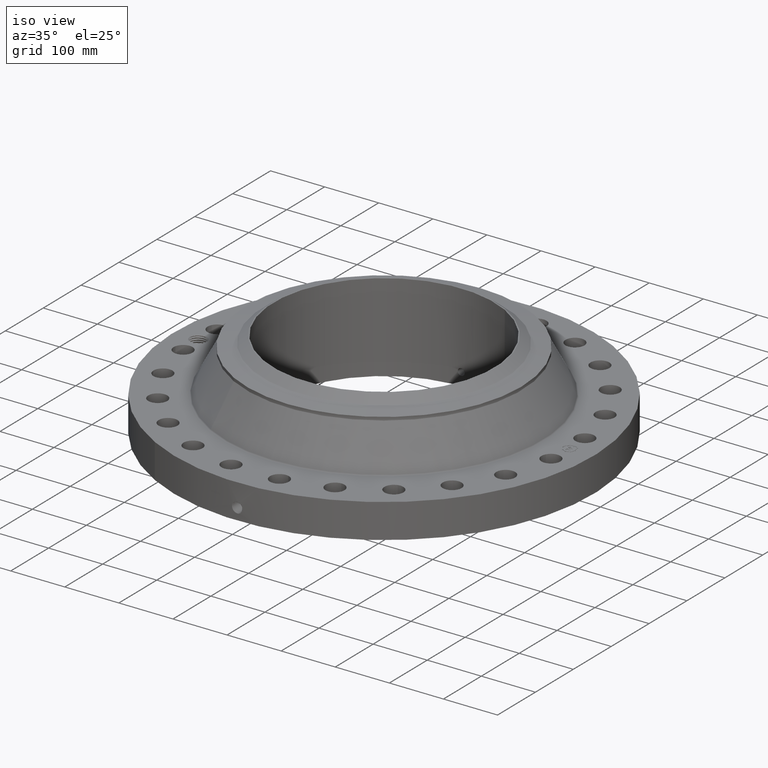
[diagram: clean part render]
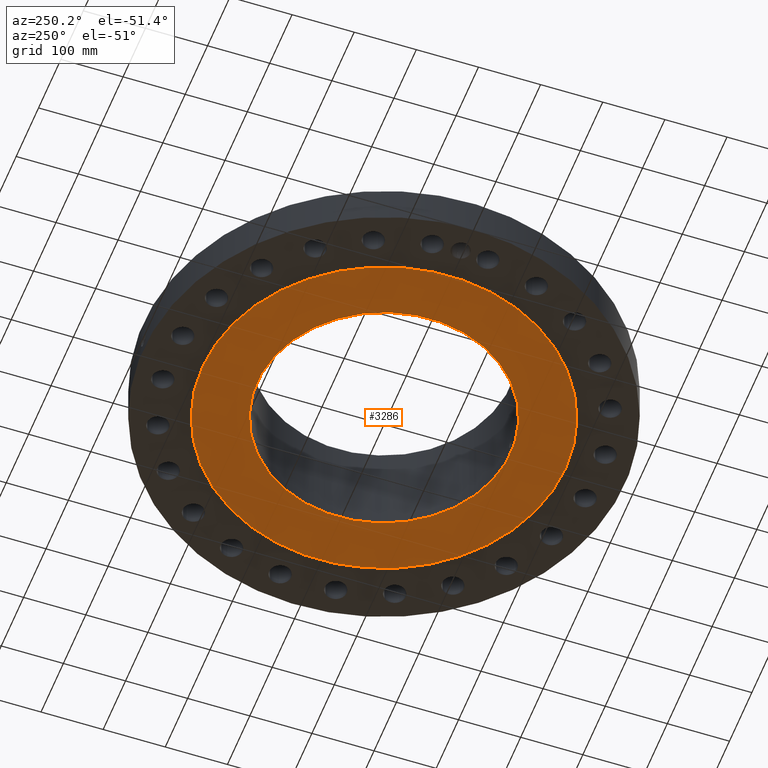
[diagram: tour spotlight — one face highlighted and labeled with its STEP entity id]
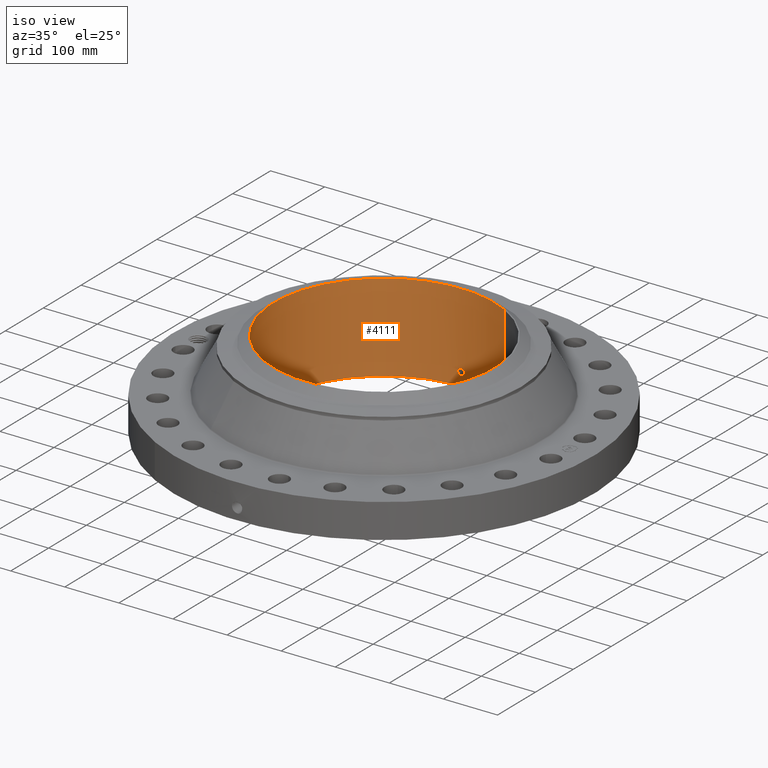
[diagram: tour spotlight — one face highlighted and labeled with its STEP entity id]
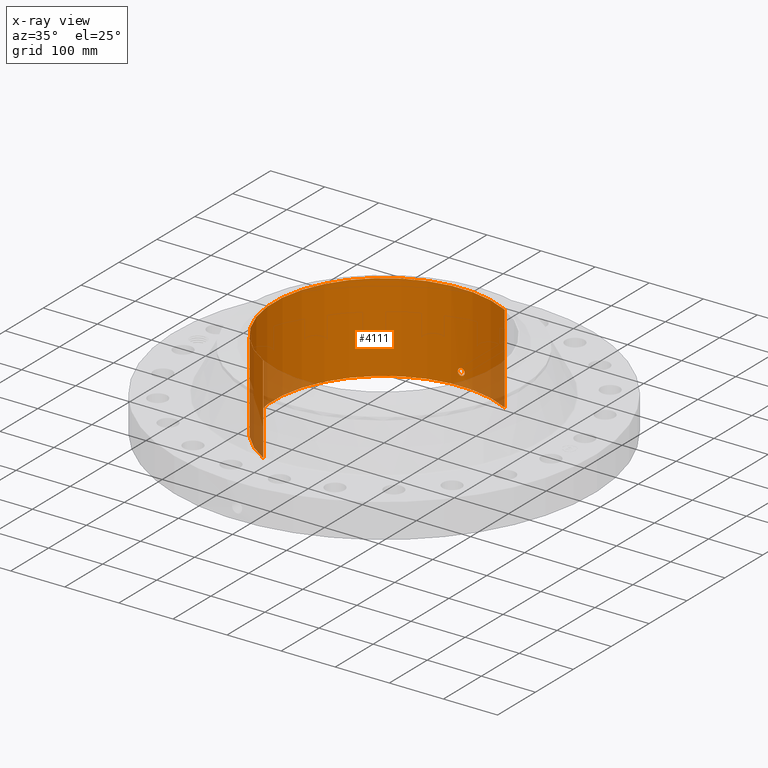
[diagram: x-ray of the same camera — body ghosted, this tour face saturated]
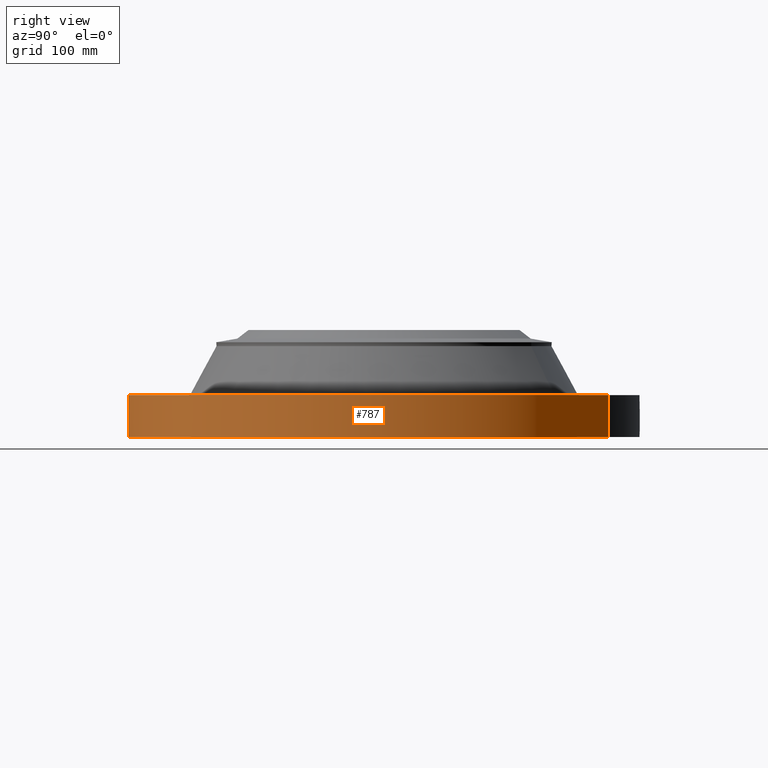
[diagram: tour spotlight — one face highlighted and labeled with its STEP entity id]
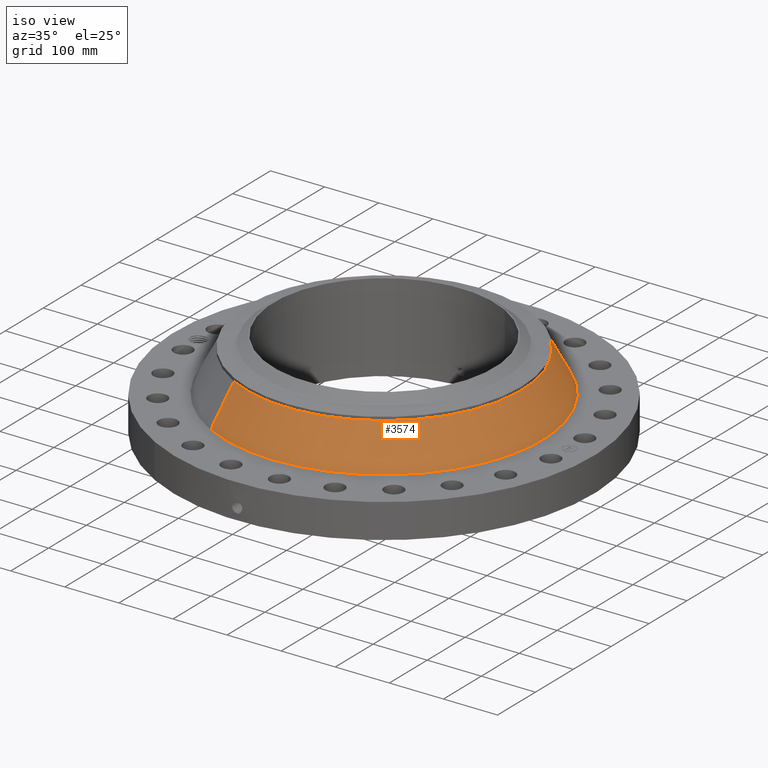
[diagram: tour spotlight — one face highlighted and labeled with its STEP entity id]
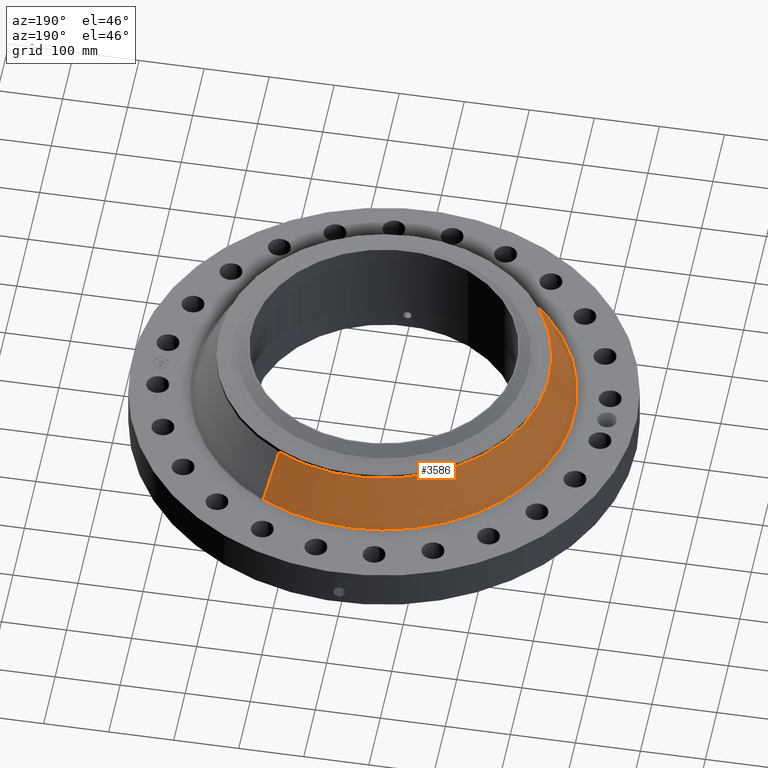
[diagram: tour spotlight — one face highlighted and labeled with its STEP entity id]
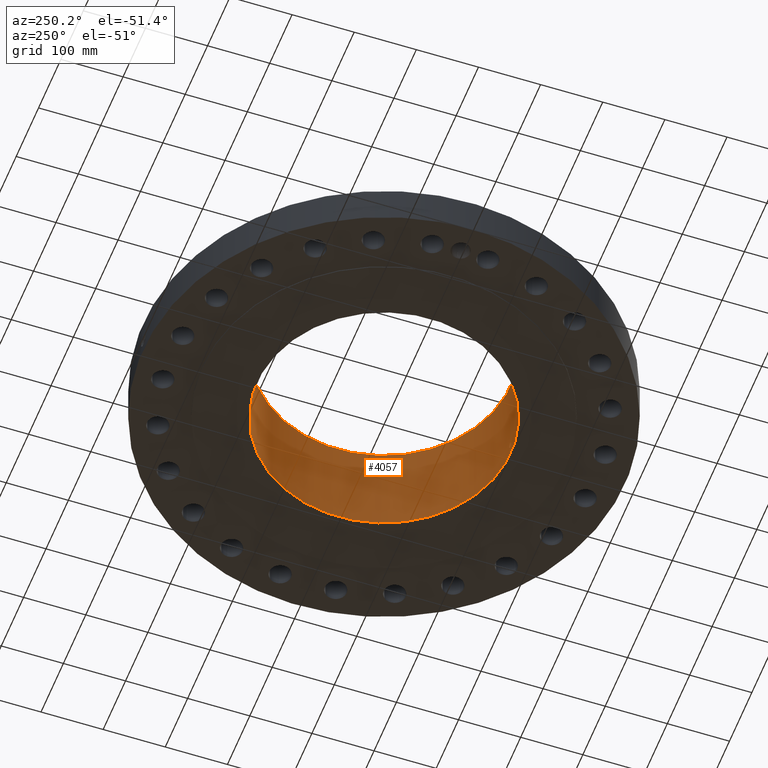
[diagram: tour spotlight — one face highlighted and labeled with its STEP entity id]
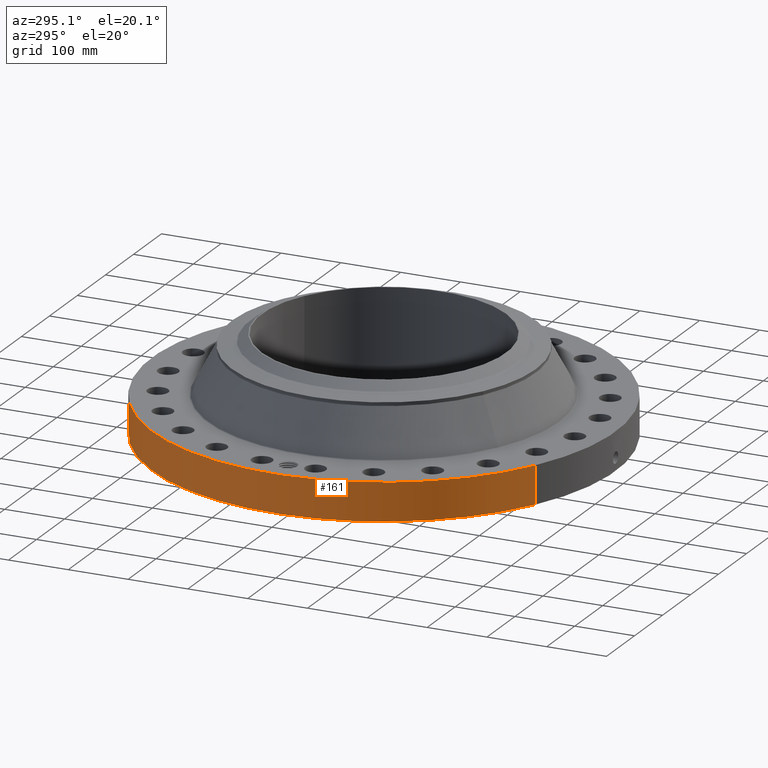
[diagram: tour spotlight — one face highlighted and labeled with its STEP entity id]
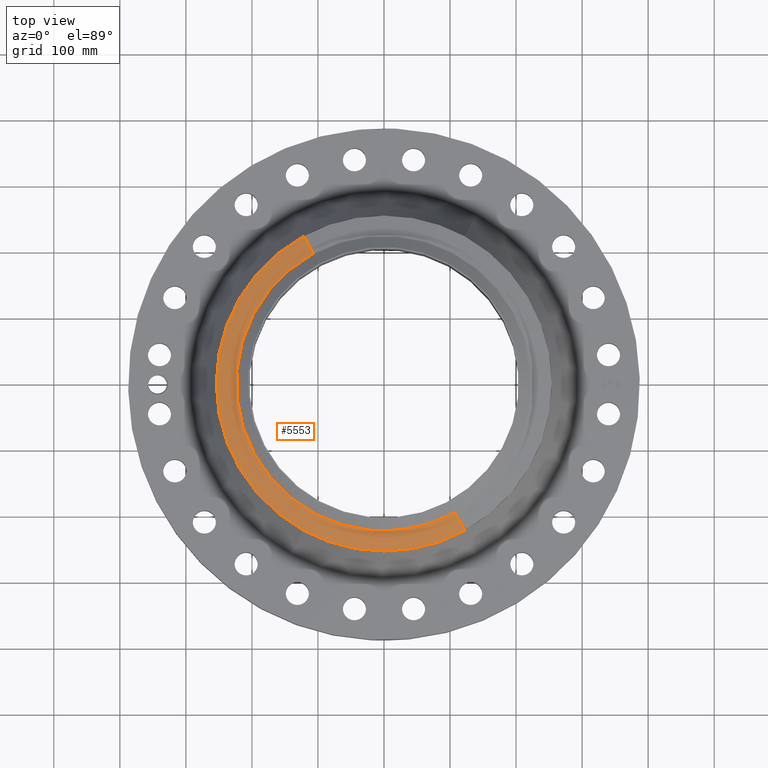
[diagram: tour spotlight — one face highlighted and labeled with its STEP entity id]
A machine part: a face-by-face anatomy tour. The part has 822 B-rep faces; the first image is the clean iso view, then the 8 largest visible faces are spotlighted one at a time (largest first), each with its STEP entity span.

Face 1 — auxiliary view, entity #3286. In plain terms, the highlighted planar face has unit normal (0, 0, -1).
Definition (entity closure, byte-faithful):
#1744=AXIS2_PLACEMENT_3D('Circle Axis2P3D',#1742,#1743,$) ;
#1770=AXIS2_PLACEMENT_3D('Circle Axis2P3D',#1768,#1769,$) ;
#3262=AXIS2_PLACEMENT_3D('Plane Axis2P3D',#3259,#3260,#3261) ;
#3270=AXIS2_PLACEMENT_3D('Circle Axis2P3D',#3268,#3269,$) ;
#3279=AXIS2_PLACEMENT_3D('Circle Axis2P3D',#3277,#3278,$) ;
#1742=CARTESIAN_POINT('Axis2P3D Location',(0.,0.,1.1189649382E-015)) ;
#1746=CARTESIAN_POINT('Vertex',(5.51339369397,10.0921994618,1.1189649382E-015)) ;
#1748=CARTESIAN_POINT('Vertex',(-5.51339369397,-10.0921994618,1.1189649382E-015)) ;
#1768=CARTESIAN_POINT('Axis2P3D Location',(0.,0.,1.1189649382E-015)) ;
#3259=CARTESIAN_POINT('Axis2P3D Location',(0.,8.03100000003,0.)) ;
#3268=CARTESIAN_POINT('Axis2P3D Location',(0.,0.,0.)) ;
#3272=CARTESIAN_POINT('Vertex',(3.85026650055,7.04786555457,-6.82568612305E-014)) ;
#3274=CARTESIAN_POINT('Vertex',(-3.85026650055,-7.04786555457,-6.82568612305E-014)) ;
#3277=CARTESIAN_POINT('Axis2P3D Location',(0.,0.,0.)) ;
#1743=DIRECTION('Axis2P3D Direction',(0.,0.,-0.0393700787402)) ;
#1769=DIRECTION('Axis2P3D Direction',(0.,0.,-0.0393700787402)) ;
#3260=DIRECTION('Axis2P3D Direction',(0.,0.,-0.0393700787402)) ;
#3261=DIRECTION('Axis2P3D XDirection',(0.0393700787402,0.,0.)) ;
#3269=DIRECTION('Axis2P3D Direction',(0.,0.,-0.0393700787402)) ;
#3278=DIRECTION('Axis2P3D Direction',(0.,0.,-0.0393700787402)) ;
#3265=ORIENTED_EDGE('',*,*,#1772,.T.) ;
#3266=ORIENTED_EDGE('',*,*,#1750,.T.) ;
#3283=ORIENTED_EDGE('',*,*,#3276,.F.) ;
#3284=ORIENTED_EDGE('',*,*,#3281,.F.) ;
#3285=FACE_BOUND('',#3282,.T.) ;
#3286=ADVANCED_FACE('PartBody',(#3267,#3285),#3263,.T.) ;
#1745=CIRCLE('generated circle',#1744,11.5) ;
#1771=CIRCLE('generated circle',#1770,11.5) ;
#3271=CIRCLE('generated circle',#3270,8.03100000003) ;
#3280=CIRCLE('generated circle',#3279,8.03100000003) ;
#1750=EDGE_CURVE('',#1747,#1749,#1745,.T.) ;
#1772=EDGE_CURVE('',#1749,#1747,#1771,.T.) ;
#3276=EDGE_CURVE('',#3273,#3275,#3271,.T.) ;
#3281=EDGE_CURVE('',#3275,#3273,#3280,.T.) ;
#3264=EDGE_LOOP('',(#3265,#3266)) ;
#3282=EDGE_LOOP('',(#3283,#3284)) ;
#3267=FACE_OUTER_BOUND('',#3264,.T.) ;
#3263=PLANE('',#3262) ;
#1747=VERTEX_POINT('',#1746) ;
#1749=VERTEX_POINT('',#1748) ;
#3273=VERTEX_POINT('',#3272) ;
#3275=VERTEX_POINT('',#3274) ;

Face 2 — iso view, entity #4111. An x-ray twin of the same camera follows (body ghosted, this face saturated) — the face is partly hidden behind the body. In plain terms, the highlighted cylindrical surface (partial cylindrical patch) has radius 203.987 mm, axis along (0, 0, -1).
Definition (entity closure, byte-faithful):
#3279=AXIS2_PLACEMENT_3D('Circle Axis2P3D',#3277,#3278,$) ;
#3988=AXIS2_PLACEMENT_3D('Cylinder Axis2P3D',#3985,#3986,#3987) ;
#4060=AXIS2_PLACEMENT_3D('Circle Axis2P3D',#4058,#4059,$) ;
#3272=CARTESIAN_POINT('Vertex',(3.85026650055,7.04786555457,-6.82568612305E-014)) ;
#3274=CARTESIAN_POINT('Vertex',(-3.85026650055,-7.04786555457,-6.82568612305E-014)) ;
#3277=CARTESIAN_POINT('Axis2P3D Location',(0.,0.,0.)) ;
#3985=CARTESIAN_POINT('Axis2P3D Location',(0.,0.,3.22000000001)) ;
#3994=CARTESIAN_POINT('Vertex',(3.85026650055,7.04786555457,6.44000000003)) ;
#3996=CARTESIAN_POINT('Vertex',(-3.85026650055,-7.04786555457,6.44000000003)) ;
#3999=CARTESIAN_POINT('Line Origine',(3.85026650055,7.04786555457,3.22000000001)) ;
#4004=CARTESIAN_POINT('Line Origine',(-3.85026650055,-7.04786555457,3.22000000001)) ;
#4058=CARTESIAN_POINT('Axis2P3D Location',(0.,0.,6.44000000003)) ;
#4070=CARTESIAN_POINT('Control Point',(0.219395640473,8.02800265031,1.05985638466)) ;
#4071=CARTESIAN_POINT('Control Point',(0.194443231357,8.02868456959,1.10553146317)) ;
#4072=CARTESIAN_POINT('Control Point',(0.157606155167,8.02959426464,1.14471043189)) ;
#4073=CARTESIAN_POINT('Control Point',(0.111110289617,8.03047894444,1.17324213297)) ;
#4074=CARTESIAN_POINT('Control Point',(0.0336761688088,8.0311828387,1.19588217449)) ;
#4075=CARTESIAN_POINT('Control Point',(-0.0446680706048,8.03093962884,1.18805678429)) ;
#4076=CARTESIAN_POINT('Control Point',(-0.0702969801381,8.03075082117,1.18204470465)) ;
#4077=CARTESIAN_POINT('Control Point',(-0.143952060388,8.02991643995,1.15421459673)) ;
#4078=CARTESIAN_POINT('Control Point',(-0.203238942375,8.02855443048,1.09950342763)) ;
#4079=CARTESIAN_POINT('Control Point',(-0.232205395001,8.02766102467,1.05326675536)) ;
#4080=CARTESIAN_POINT('Control Point',(-0.255839783985,8.02692648241,0.975119048047)) ;
#4081=CARTESIAN_POINT('Control Point',(-0.248284067966,8.02716111598,0.895752013794)) ;
#4082=CARTESIAN_POINT('Control Point',(-0.242050260821,8.02735751363,0.869187462224)) ;
#4083=CARTESIAN_POINT('Control Point',(-0.23231626622,8.02764954518,0.843794662138)) ;
#4084=CARTESIAN_POINT('Control Point',(-0.219395640473,8.02800265031,0.820143615352)) ;
#4085=CARTESIAN_POINT('Vertex',(0.219395640473,8.02800265031,1.05985638466)) ;
#4087=CARTESIAN_POINT('Vertex',(-0.219395640473,8.02800265031,0.820143615352)) ;
#4091=CARTESIAN_POINT('Control Point',(-0.219395640473,8.02800265031,0.820143615352)) ;
#4092=CARTESIAN_POINT('Control Point',(-0.194443231329,8.02868456959,0.774468536787)) ;
#4093=CARTESIAN_POINT('Control Point',(-0.157606155086,8.02959426464,0.735289568036)) ;
#4094=CARTESIAN_POINT('Control Point',(-0.111110289729,8.03047894444,0.706757867074)) ;
#4095=CARTESIAN_POINT('Control Point',(-0.0336761688433,8.0311828387,0.684117825508)) ;
#4096=CARTESIAN_POINT('Control Point',(0.0446680706495,8.03093962884,0.691943215721)) ;
#4097=CARTESIAN_POINT('Control Point',(0.0702969800971,8.03075082117,0.697955295343)) ;
#4098=CARTESIAN_POINT('Control Point',(0.143952060411,8.02991643995,0.725785403279)) ;
#4099=CARTESIAN_POINT('Control Point',(0.203238942439,8.02855443048,0.780496572437)) ;
#4100=CARTESIAN_POINT('Control Point',(0.232205394977,8.02766102467,0.826733244565)) ;
#4101=CARTESIAN_POINT('Control Point',(0.255839783979,8.02692648241,0.904880951886)) ;
#4102=CARTESIAN_POINT('Control Point',(0.248284067973,8.02716111598,0.984247986147)) ;
#4103=CARTESIAN_POINT('Control Point',(0.242050260797,8.02735751363,1.01081253785)) ;
#4104=CARTESIAN_POINT('Control Point',(0.232316266204,8.02764954518,1.0362053379)) ;
#4105=CARTESIAN_POINT('Control Point',(0.219395640473,8.02800265031,1.05985638466)) ;
#3278=DIRECTION('Axis2P3D Direction',(0.,0.,-0.0393700787402)) ;
#3986=DIRECTION('Axis2P3D Direction',(0.,0.,-0.0393700787402)) ;
#3987=DIRECTION('Axis2P3D XDirection',(-0.0188750212049,-0.0345504945626,0.)) ;
#4000=DIRECTION('Vector Direction',(0.,0.,-0.0393700787402)) ;
#4005=DIRECTION('Vector Direction',(0.,0.,-0.0393700787402)) ;
#4059=DIRECTION('Axis2P3D Direction',(0.,0.,-0.0393700787402)) ;
#4001=VECTOR('Line Direction',#4000,0.0393700787402) ;
#4006=VECTOR('Line Direction',#4005,0.0393700787402) ;
#4064=ORIENTED_EDGE('',*,*,#4062,.F.) ;
#4065=ORIENTED_EDGE('',*,*,#4008,.T.) ;
#4066=ORIENTED_EDGE('',*,*,#3281,.T.) ;
#4067=ORIENTED_EDGE('',*,*,#4003,.F.) ;
#4108=ORIENTED_EDGE('',*,*,#4089,.F.) ;
#4109=ORIENTED_EDGE('',*,*,#4106,.F.) ;
#4110=FACE_BOUND('',#4107,.T.) ;
#4111=ADVANCED_FACE('PartBody',(#4068,#4110),#3989,.F.) ;
#4069=B_SPLINE_CURVE_WITH_KNOTS('',5,(#4070,#4071,#4072,#4073,#4074,#4075,#4076,#4077,#4078,#4079,#4080,#4081,#4082,#4083,#4084),.UNSPECIFIED.,.F.,.U.,(6,3,3,3,6),(0.,9.34861575651,14.0227898226,23.3728212018,28.2136349633),.UNSPECIFIED.) ;
#4090=B_SPLINE_CURVE_WITH_KNOTS('',5,(#4091,#4092,#4093,#4094,#4095,#4096,#4097,#4098,#4099,#4100,#4101,#4102,#4103,#4104,#4105),.UNSPECIFIED.,.F.,.U.,(6,3,3,3,6),(0.,9.34861576667,14.0227898367,23.3728212234,28.2136349789),.UNSPECIFIED.) ;
#3280=CIRCLE('generated circle',#3279,8.03100000003) ;
#4061=CIRCLE('generated circle',#4060,8.03100000003) ;
#3989=CYLINDRICAL_SURFACE('generated cylinder',#3988,8.03100000003) ;
#3281=EDGE_CURVE('',#3275,#3273,#3280,.T.) ;
#4003=EDGE_CURVE('',#3995,#3273,#4002,.T.) ;
#4008=EDGE_CURVE('',#3997,#3275,#4007,.T.) ;
#4062=EDGE_CURVE('',#3997,#3995,#4061,.T.) ;
#4089=EDGE_CURVE('',#4086,#4088,#4069,.T.) ;
#4106=EDGE_CURVE('',#4088,#4086,#4090,.T.) ;
#4063=EDGE_LOOP('',(#4064,#4065,#4066,#4067)) ;
#4107=EDGE_LOOP('',(#4108,#4109)) ;
#4068=FACE_OUTER_BOUND('',#4063,.T.) ;
#4002=LINE('Line',#3999,#4001) ;
#4007=LINE('Line',#4004,#4006) ;
#3273=VERTEX_POINT('',#3272) ;
#3275=VERTEX_POINT('',#3274) ;
#3995=VERTEX_POINT('',#3994) ;
#3997=VERTEX_POINT('',#3996) ;
#4086=VERTEX_POINT('',#4085) ;
#4088=VERTEX_POINT('',#4087) ;

Face 3 — right view, entity #787. In plain terms, the highlighted cylindrical surface (partial cylindrical patch) has radius 387.35 mm, axis along (0, 0, -1).
Definition (entity closure, byte-faithful):
#38=AXIS2_PLACEMENT_3D('Cylinder Axis2P3D',#35,#36,#37) ;
#169=AXIS2_PLACEMENT_3D('Circle Axis2P3D',#167,#168,$) ;
#691=AXIS2_PLACEMENT_3D('Circle Axis2P3D',#689,#690,$) ;
#35=CARTESIAN_POINT('Axis2P3D Location',(0.,0.,3.22000000001)) ;
#44=CARTESIAN_POINT('Vertex',(-7.31123946374,-13.3831340689,0.0600000000002)) ;
#46=CARTESIAN_POINT('Vertex',(7.31123946374,13.3831340689,0.0600000000002)) ;
#49=CARTESIAN_POINT('Line Origine',(-7.31123946374,-13.3831340689,1.31000000001)) ;
#53=CARTESIAN_POINT('Vertex',(-7.31123946374,-13.3831340689,2.56000000001)) ;
#60=CARTESIAN_POINT('Vertex',(7.31123946374,13.3831340689,2.56000000001)) ;
#63=CARTESIAN_POINT('Line Origine',(7.31123946374,13.3831340689,1.31000000001)) ;
#167=CARTESIAN_POINT('Axis2P3D Location',(0.,0.,0.0600000000002)) ;
#689=CARTESIAN_POINT('Axis2P3D Location',(0.,0.,2.56000000001)) ;
#701=CARTESIAN_POINT('Control Point',(0.000716049766475,-15.2499999833,1.29411846129)) ;
#702=CARTESIAN_POINT('Control Point',(0.0189701072577,-15.2499991261,1.29408159437)) ;
#703=CARTESIAN_POINT('Control Point',(0.0372209751358,-15.2499652355,1.29262936671)) ;
#704=CARTESIAN_POINT('Control Point',(0.0552509399649,-15.2498999123,1.28977927812)) ;
#705=CARTESIAN_POINT('Vertex',(0.000715697200082,-15.2499999833,1.29411851055)) ;
#707=CARTESIAN_POINT('Vertex',(0.055242138106,-15.2499001965,1.28978068759)) ;
#711=CARTESIAN_POINT('Control Point',(0.0552420427631,-15.2498999445,1.28978014022)) ;
#712=CARTESIAN_POINT('Control Point',(0.0956981569448,-15.2497533942,1.28536268072)) ;
#713=CARTESIAN_POINT('Control Point',(0.135516524694,-15.2494419834,1.27358724127)) ;
#714=CARTESIAN_POINT('Control Point',(0.172195687342,-15.2490277935,1.25523274047)) ;
#715=CARTESIAN_POINT('Vertex',(0.172195687342,-15.2490277935,1.25523274047)) ;
#719=CARTESIAN_POINT('Control Point',(0.0310152642592,-15.2499684608,0.53118928844)) ;
#720=CARTESIAN_POINT('Control Point',(0.0961823380583,-15.2498359245,0.539436739137)) ;
#721=CARTESIAN_POINT('Control Point',(0.159294043579,-15.2493594722,0.561293751329)) ;
#722=CARTESIAN_POINT('Control Point',(0.216401137009,-15.2485887094,0.596098828602)) ;
#723=CARTESIAN_POINT('Control Point',(0.288819771731,-15.2473275345,0.664189974993)) ;
#724=CARTESIAN_POINT('Control Point',(0.336428392929,-15.2462994751,0.748671469603)) ;
#725=CARTESIAN_POINT('Control Point',(0.349472606068,-15.2460004619,0.778732970435)) ;
#726=CARTESIAN_POINT('Control Point',(0.371687708446,-15.2454753168,0.848970817983)) ;
#727=CARTESIAN_POINT('Control Point',(0.377175372891,-15.2453335918,0.922141203717)) ;
#728=CARTESIAN_POINT('Control Point',(0.37491028845,-15.2453911791,0.962947952618)) ;
#729=CARTESIAN_POINT('Control Point',(0.356496036589,-15.245851249,1.06072433248)) ;
#730=CARTESIAN_POINT('Control Point',(0.308136791893,-15.2469313731,1.14794325788)) ;
#731=CARTESIAN_POINT('Control Point',(0.269818079768,-15.2477093271,1.19323963339)) ;
#732=CARTESIAN_POINT('Control Point',(0.223535778771,-15.2484480489,1.2295418069)) ;
#733=CARTESIAN_POINT('Control Point',(0.172195687342,-15.2490277935,1.25523274047)) ;
#734=CARTESIAN_POINT('Vertex',(0.0310152642592,-15.2499684608,0.53118928844)) ;
#738=CARTESIAN_POINT('Control Point',(0.0310152642592,-15.2499684608,0.53118928844)) ;
#739=CARTESIAN_POINT('Control Point',(0.0206719752859,-15.2499894969,0.53087456983)) ;
#740=CARTESIAN_POINT('Control Point',(0.0103211166376,-15.2500000019,0.530936539703)) ;
#741=CARTESIAN_POINT('Control Point',(-2.72878354802E-006,-15.2500000001,0.531374667806)) ;
#742=CARTESIAN_POINT('Vertex',(-2.72878354471E-006,-15.2500000001,0.531374667806)) ;
#746=CARTESIAN_POINT('Control Point',(-0.192625061438,-15.2487834134,0.58741326924)) ;
#747=CARTESIAN_POINT('Control Point',(-0.149005457557,-15.2493344231,0.562040395759)) ;
#748=CARTESIAN_POINT('Control Point',(-0.101116386703,-15.2497737091,0.543779824756)) ;
#749=CARTESIAN_POINT('Control Point',(-0.0508056148469,-15.249999991,0.533530663288)) ;
#750=CARTESIAN_POINT('Control Point',(-2.72878354801E-006,-15.2500000001,0.531374667806)) ;
#751=CARTESIAN_POINT('Vertex',(-0.192625061438,-15.2487834134,0.58741326924)) ;
#755=CARTESIAN_POINT('Control Point',(-0.192625061438,-15.2487834134,0.58741326924)) ;
#756=CARTESIAN_POINT('Control Point',(-0.249453783253,-15.2480655439,0.620469689026)) ;
#757=CARTESIAN_POINT('Control Point',(-0.299509163598,-15.2471684596,0.664842822456)) ;
#758=CARTESIAN_POINT('Control Point',(-0.339645810431,-15.2462572537,0.718973028893)) ;
#759=CARTESIAN_POINT('Control Point',(-0.383846820918,-15.2451782415,0.81717132324)) ;
#760=CARTESIAN_POINT('Control Point',(-0.392394948551,-15.2449495023,0.922456432569)) ;
#761=CARTESIAN_POINT('Control Point',(-0.390268294798,-15.2450057477,0.96262107824)) ;
#762=CARTESIAN_POINT('Control Point',(-0.376095244228,-15.2453740937,1.03752589677)) ;
#763=CARTESIAN_POINT('Control Point',(-0.343961436322,-15.2461332323,1.10595638763)) ;
#764=CARTESIAN_POINT('Control Point',(-0.324884519532,-15.2465612243,1.13637813142)) ;
#765=CARTESIAN_POINT('Control Point',(-0.263167036719,-15.2478271655,1.21273609869)) ;
#766=CARTESIAN_POINT('Control Point',(-0.180082080088,-15.2490857223,1.26567044336)) ;
#767=CARTESIAN_POINT('Control Point',(-0.121355009486,-15.2497029237,1.28768574766)) ;
#768=CARTESIAN_POINT('Control Point',(-0.0601974085773,-15.2500001022,1.29710564982)) ;
#769=CARTESIAN_POINT('Control Point',(2.58579355455E-005,-15.25,1.2941529843)) ;
#770=CARTESIAN_POINT('Vertex',(2.58579355472E-005,-15.25,1.2941529843)) ;
#774=CARTESIAN_POINT('Control Point',(0.000715697190474,-15.2499999833,1.29411851054)) ;
#775=CARTESIAN_POINT('Control Point',(0.00037080210737,-15.2499999995,1.29413607216)) ;
#776=CARTESIAN_POINT('Control Point',(2.58579405796E-005,-15.25,1.2941529843)) ;
#36=DIRECTION('Axis2P3D Direction',(0.,0.,-0.0393700787402)) ;
#37=DIRECTION('Axis2P3D XDirection',(0.0188750212049,0.0345504945626,0.)) ;
#50=DIRECTION('Vector Direction',(0.,0.,-0.0393700787402)) ;
#64=DIRECTION('Vector Direction',(0.,0.,-0.0393700787402)) ;
#168=DIRECTION('Axis2P3D Direction',(0.,0.,-0.0393700787402)) ;
#690=DIRECTION('Axis2P3D Direction',(0.,0.,-0.0393700787402)) ;
#51=VECTOR('Line Direction',#50,0.0393700787402) ;
#65=VECTOR('Line Direction',#64,0.0393700787402) ;
#695=ORIENTED_EDGE('',*,*,#171,.F.) ;
#696=ORIENTED_EDGE('',*,*,#67,.T.) ;
#697=ORIENTED_EDGE('',*,*,#693,.T.) ;
#698=ORIENTED_EDGE('',*,*,#55,.F.) ;
#779=ORIENTED_EDGE('',*,*,#709,.T.) ;
#780=ORIENTED_EDGE('',*,*,#717,.T.) ;
#781=ORIENTED_EDGE('',*,*,#736,.F.) ;
#782=ORIENTED_EDGE('',*,*,#744,.T.) ;
#783=ORIENTED_EDGE('',*,*,#753,.F.) ;
#784=ORIENTED_EDGE('',*,*,#772,.T.) ;
#785=ORIENTED_EDGE('',*,*,#777,.F.) ;
#786=FACE_BOUND('',#778,.T.) ;
#787=ADVANCED_FACE('PartBody',(#699,#786),#39,.T.) ;
#700=B_SPLINE_CURVE_WITH_KNOTS('',3,(#701,#702,#703,#704),.UNSPECIFIED.,.F.,.U.,(4,4),(34.6166020512,36.641716465),.UNSPECIFIED.) ;
#710=B_SPLINE_CURVE_WITH_KNOTS('',3,(#711,#712,#713,#714),.UNSPECIFIED.,.F.,.U.,(4,4),(0.,4.5728302455),.UNSPECIFIED.) ;
#718=B_SPLINE_CURVE_WITH_KNOTS('',5,(#719,#720,#721,#722,#723,#724,#725,#726,#727,#728,#729,#730,#731,#732,#733),.UNSPECIFIED.,.F.,.U.,(6,3,3,3,6),(0.,11.4156301279,17.2563856342,24.6134498897,35.2811566969),.UNSPECIFIED.) ;
#737=B_SPLINE_CURVE_WITH_KNOTS('',3,(#738,#739,#740,#741),.UNSPECIFIED.,.F.,.U.,(4,4),(0.,1.07896259327),.UNSPECIFIED.) ;
#745=B_SPLINE_CURVE_WITH_KNOTS('',4,(#746,#747,#748,#749,#750),.UNSPECIFIED.,.F.,.U.,(5,5),(0.,7.0793276986),.UNSPECIFIED.) ;
#754=B_SPLINE_CURVE_WITH_KNOTS('',5,(#755,#756,#757,#758,#759,#760,#761,#762,#763,#764,#765,#766,#767,#768,#769),.UNSPECIFIED.,.F.,.U.,(6,3,3,3,6),(0.,11.5289086277,18.6079826537,25.0299917314,36.2869702237),.UNSPECIFIED.) ;
#773=B_SPLINE_CURVE_WITH_KNOTS('',2,(#774,#775,#776),.UNSPECIFIED.,.F.,.U.,(3,3),(1.021811413,1.04760230385),.UNSPECIFIED.) ;
#170=CIRCLE('generated circle',#169,15.2500000001) ;
#692=CIRCLE('generated circle',#691,15.2500000001) ;
#39=CYLINDRICAL_SURFACE('generated cylinder',#38,15.2500000001) ;
#55=EDGE_CURVE('',#45,#54,#52,.F.) ;
#67=EDGE_CURVE('',#47,#61,#66,.F.) ;
#171=EDGE_CURVE('',#47,#45,#170,.T.) ;
#693=EDGE_CURVE('',#61,#54,#692,.T.) ;
#709=EDGE_CURVE('',#706,#708,#700,.T.) ;
#717=EDGE_CURVE('',#708,#716,#710,.T.) ;
#736=EDGE_CURVE('',#735,#716,#718,.T.) ;
#744=EDGE_CURVE('',#735,#743,#737,.T.) ;
#753=EDGE_CURVE('',#752,#743,#745,.T.) ;
#772=EDGE_CURVE('',#752,#771,#754,.T.) ;
#777=EDGE_CURVE('',#706,#771,#773,.T.) ;
#694=EDGE_LOOP('',(#695,#696,#697,#698)) ;
#778=EDGE_LOOP('',(#779,#780,#781,#782,#783,#784,#785)) ;
#699=FACE_OUTER_BOUND('',#694,.T.) ;
#52=LINE('Line',#49,#51) ;
#66=LINE('Line',#63,#65) ;
#45=VERTEX_POINT('',#44) ;
#47=VERTEX_POINT('',#46) ;
#54=VERTEX_POINT('',#53) ;
#61=VERTEX_POINT('',#60) ;
#706=VERTEX_POINT('',#705) ;
#708=VERTEX_POINT('',#707) ;
#716=VERTEX_POINT('',#715) ;
#735=VERTEX_POINT('',#734) ;
#743=VERTEX_POINT('',#742) ;
#752=VERTEX_POINT('',#751) ;
#771=VERTEX_POINT('',#770) ;

Face 4 — iso view, entity #3574. In plain terms, the highlighted conical surface has half-angle 28.155 deg.
Definition (entity closure, byte-faithful):
#2853=AXIS2_PLACEMENT_3D('Circle Axis2P3D',#2851,#2852,$) ;
#3547=AXIS2_PLACEMENT_3D('Cone Axis2P3D',#3544,#3545,#3546) ;
#3558=AXIS2_PLACEMENT_3D('Circle Axis2P3D',#3556,#3557,$) ;
#2848=CARTESIAN_POINT('Vertex',(5.52589795933,10.115088366,2.62337762076)) ;
#2851=CARTESIAN_POINT('Axis2P3D Location',(0.,0.,2.62337762076)) ;
#2855=CARTESIAN_POINT('Vertex',(-5.52589795933,-10.115088366,2.62337762076)) ;
#3544=CARTESIAN_POINT('Axis2P3D Location',(0.,0.,5.47492453083)) ;
#3549=CARTESIAN_POINT('Line Origine',(5.1600766727,9.44545699247,4.04915107579)) ;
#3553=CARTESIAN_POINT('Vertex',(4.79425538606,8.77582561894,5.47492453083)) ;
#3556=CARTESIAN_POINT('Axis2P3D Location',(0.,0.,5.47492453083)) ;
#3560=CARTESIAN_POINT('Vertex',(-4.79425538606,-8.77582561894,5.47492453083)) ;
#3563=CARTESIAN_POINT('Line Origine',(-5.1600766727,-9.44545699247,4.04915107579)) ;
#2852=DIRECTION('Axis2P3D Direction',(0.,0.,-0.0393700787402)) ;
#3545=DIRECTION('Axis2P3D Direction',(0.,0.,-0.0393700787402)) ;
#3546=DIRECTION('Axis2P3D XDirection',(-0.0188750212049,-0.0345504945626,0.)) ;
#3550=DIRECTION('Vector Direction',(0.00890623840919,0.0163027600547,-0.0347116987773)) ;
#3557=DIRECTION('Axis2P3D Direction',(0.,0.,-0.0393700787402)) ;
#3564=DIRECTION('Vector Direction',(-0.00890623840919,-0.0163027600547,-0.0347116987773)) ;
#3551=VECTOR('Line Direction',#3550,0.0393700787402) ;
#3565=VECTOR('Line Direction',#3564,0.0393700787402) ;
#3569=ORIENTED_EDGE('',*,*,#2857,.F.) ;
#3570=ORIENTED_EDGE('',*,*,#3555,.T.) ;
#3571=ORIENTED_EDGE('',*,*,#3562,.T.) ;
#3572=ORIENTED_EDGE('',*,*,#3567,.F.) ;
#3574=ADVANCED_FACE('PartBody',(#3573),#3548,.T.) ;
#2854=CIRCLE('generated circle',#2853,11.5260817674) ;
#3559=CIRCLE('generated circle',#3558,10.) ;
#3548=CONICAL_SURFACE('Cone',#3547,10.,0.491391457057) ;
#2857=EDGE_CURVE('',#2849,#2856,#2854,.T.) ;
#3555=EDGE_CURVE('',#2849,#3554,#3552,.F.) ;
#3562=EDGE_CURVE('',#3554,#3561,#3559,.T.) ;
#3567=EDGE_CURVE('',#2856,#3561,#3566,.F.) ;
#3568=EDGE_LOOP('',(#3569,#3570,#3571,#3572)) ;
#3573=FACE_OUTER_BOUND('',#3568,.T.) ;
#3552=LINE('Line',#3549,#3551) ;
#3566=LINE('Line',#3563,#3565) ;
#2849=VERTEX_POINT('',#2848) ;
#2856=VERTEX_POINT('',#2855) ;
#3554=VERTEX_POINT('',#3553) ;
#3561=VERTEX_POINT('',#3560) ;

Face 5 — auxiliary view, entity #3586. In plain terms, the highlighted conical surface has half-angle 28.155 deg.
Definition (entity closure, byte-faithful):
#2872=AXIS2_PLACEMENT_3D('Circle Axis2P3D',#2870,#2871,$) ;
#3547=AXIS2_PLACEMENT_3D('Cone Axis2P3D',#3544,#3545,#3546) ;
#3577=AXIS2_PLACEMENT_3D('Circle Axis2P3D',#3575,#3576,$) ;
#2848=CARTESIAN_POINT('Vertex',(5.52589795933,10.115088366,2.62337762076)) ;
#2855=CARTESIAN_POINT('Vertex',(-5.52589795933,-10.115088366,2.62337762076)) ;
#2870=CARTESIAN_POINT('Axis2P3D Location',(0.,0.,2.62337762076)) ;
#3544=CARTESIAN_POINT('Axis2P3D Location',(0.,0.,5.47492453083)) ;
#3549=CARTESIAN_POINT('Line Origine',(5.1600766727,9.44545699247,4.04915107579)) ;
#3553=CARTESIAN_POINT('Vertex',(4.79425538606,8.77582561894,5.47492453083)) ;
#3560=CARTESIAN_POINT('Vertex',(-4.79425538606,-8.77582561894,5.47492453083)) ;
#3563=CARTESIAN_POINT('Line Origine',(-5.1600766727,-9.44545699247,4.04915107579)) ;
#3575=CARTESIAN_POINT('Axis2P3D Location',(0.,0.,5.47492453083)) ;
#2871=DIRECTION('Axis2P3D Direction',(0.,0.,-0.0393700787402)) ;
#3545=DIRECTION('Axis2P3D Direction',(0.,0.,-0.0393700787402)) ;
#3546=DIRECTION('Axis2P3D XDirection',(-0.0188750212049,-0.0345504945626,0.)) ;
#3550=DIRECTION('Vector Direction',(0.00890623840919,0.0163027600547,-0.0347116987773)) ;
#3564=DIRECTION('Vector Direction',(-0.00890623840919,-0.0163027600547,-0.0347116987773)) ;
#3576=DIRECTION('Axis2P3D Direction',(0.,0.,-0.0393700787402)) ;
#3551=VECTOR('Line Direction',#3550,0.0393700787402) ;
#3565=VECTOR('Line Direction',#3564,0.0393700787402) ;
#3581=ORIENTED_EDGE('',*,*,#2874,.F.) ;
#3582=ORIENTED_EDGE('',*,*,#3567,.T.) ;
#3583=ORIENTED_EDGE('',*,*,#3579,.T.) ;
#3584=ORIENTED_EDGE('',*,*,#3555,.F.) ;
#3586=ADVANCED_FACE('PartBody',(#3585),#3548,.T.) ;
#2873=CIRCLE('generated circle',#2872,11.5260817674) ;
#3578=CIRCLE('generated circle',#3577,10.) ;
#3548=CONICAL_SURFACE('Cone',#3547,10.,0.491391457057) ;
#2874=EDGE_CURVE('',#2856,#2849,#2873,.T.) ;
#3555=EDGE_CURVE('',#2849,#3554,#3552,.F.) ;
#3567=EDGE_CURVE('',#2856,#3561,#3566,.F.) ;
#3579=EDGE_CURVE('',#3561,#3554,#3578,.T.) ;
#3580=EDGE_LOOP('',(#3581,#3582,#3583,#3584)) ;
#3585=FACE_OUTER_BOUND('',#3580,.T.) ;
#3552=LINE('Line',#3549,#3551) ;
#3566=LINE('Line',#3563,#3565) ;
#2849=VERTEX_POINT('',#2848) ;
#2856=VERTEX_POINT('',#2855) ;
#3554=VERTEX_POINT('',#3553) ;
#3561=VERTEX_POINT('',#3560) ;

Face 6 — auxiliary view, entity #4057. In plain terms, the highlighted cylindrical surface (partial cylindrical patch) has radius 203.987 mm, axis along (0, 0, -1).
Definition (entity closure, byte-faithful):
#3270=AXIS2_PLACEMENT_3D('Circle Axis2P3D',#3268,#3269,$) ;
#3988=AXIS2_PLACEMENT_3D('Cylinder Axis2P3D',#3985,#3986,#3987) ;
#3992=AXIS2_PLACEMENT_3D('Circle Axis2P3D',#3990,#3991,$) ;
#3268=CARTESIAN_POINT('Axis2P3D Location',(0.,0.,0.)) ;
#3272=CARTESIAN_POINT('Vertex',(3.85026650055,7.04786555457,-6.82568612305E-014)) ;
#3274=CARTESIAN_POINT('Vertex',(-3.85026650055,-7.04786555457,-6.82568612305E-014)) ;
#3985=CARTESIAN_POINT('Axis2P3D Location',(0.,0.,3.22000000001)) ;
#3990=CARTESIAN_POINT('Axis2P3D Location',(0.,0.,6.44000000003)) ;
#3994=CARTESIAN_POINT('Vertex',(3.85026650055,7.04786555457,6.44000000003)) ;
#3996=CARTESIAN_POINT('Vertex',(-3.85026650055,-7.04786555457,6.44000000003)) ;
#3999=CARTESIAN_POINT('Line Origine',(3.85026650055,7.04786555457,3.22000000001)) ;
#4004=CARTESIAN_POINT('Line Origine',(-3.85026650055,-7.04786555457,3.22000000001)) ;
#4016=CARTESIAN_POINT('Control Point',(0.219395640473,-8.02800265031,0.820143615352)) ;
#4017=CARTESIAN_POINT('Control Point',(0.19444323133,-8.02868456959,0.774468536788)) ;
#4018=CARTESIAN_POINT('Control Point',(0.157606155087,-8.02959426464,0.735289568037)) ;
#4019=CARTESIAN_POINT('Control Point',(0.111110289727,-8.03047894444,0.706757867073)) ;
#4020=CARTESIAN_POINT('Control Point',(0.0336761688498,-8.0311828387,0.68411782551)) ;
#4021=CARTESIAN_POINT('Control Point',(-0.0446680706344,-8.03093962884,0.69194321572)) ;
#4022=CARTESIAN_POINT('Control Point',(-0.0702969801129,-8.03075082117,0.697955295349)) ;
#4023=CARTESIAN_POINT('Control Point',(-0.143952060432,-8.02991643995,0.72578540329)) ;
#4024=CARTESIAN_POINT('Control Point',(-0.203238942463,-8.02855443048,0.780496572458)) ;
#4025=CARTESIAN_POINT('Control Point',(-0.232205394968,-8.02766102467,0.826733244535)) ;
#4026=CARTESIAN_POINT('Control Point',(-0.25583978398,-8.02692648241,0.90488095187)) ;
#4027=CARTESIAN_POINT('Control Point',(-0.248284067973,-8.02716111598,0.984247986145)) ;
#4028=CARTESIAN_POINT('Control Point',(-0.242050260796,-8.02735751363,1.01081253785)) ;
#4029=CARTESIAN_POINT('Control Point',(-0.232316266203,-8.02764954518,1.0362053379)) ;
#4030=CARTESIAN_POINT('Control Point',(-0.219395640473,-8.02800265031,1.05985638466)) ;
#4031=CARTESIAN_POINT('Vertex',(0.219395640473,-8.02800265031,0.820143615352)) ;
#4033=CARTESIAN_POINT('Vertex',(-0.219395640473,-8.02800265031,1.05985638466)) ;
#4037=CARTESIAN_POINT('Control Point',(-0.219395640473,-8.02800265031,1.05985638466)) ;
#4038=CARTESIAN_POINT('Control Point',(-0.194443231317,-8.02868456959,1.10553146324)) ;
#4039=CARTESIAN_POINT('Control Point',(-0.157606155051,-8.02959426464,1.14471043201)) ;
#4040=CARTESIAN_POINT('Control Point',(-0.111110289778,-8.03047894444,1.17324213292)) ;
#4041=CARTESIAN_POINT('Control Point',(-0.0336761688786,-8.0311828387,1.1958821745)) ;
#4042=CARTESIAN_POINT('Control Point',(0.0446680706293,-8.03093962884,1.18805678429)) ;
#4043=CARTESIAN_POINT('Control Point',(0.0702969801162,-8.03075082117,1.18204470466)) ;
#4044=CARTESIAN_POINT('Control Point',(0.143952060407,-8.02991643995,1.15421459673)) ;
#4045=CARTESIAN_POINT('Control Point',(0.203238942419,-8.02855443048,1.09950342759)) ;
#4046=CARTESIAN_POINT('Control Point',(0.232205394984,-8.02766102467,1.05326675542)) ;
#4047=CARTESIAN_POINT('Control Point',(0.255839783988,-8.02692648241,0.975119048075)) ;
#4048=CARTESIAN_POINT('Control Point',(0.248284067966,-8.02716111598,0.895752013793)) ;
#4049=CARTESIAN_POINT('Control Point',(0.242050260821,-8.02735751363,0.869187462224)) ;
#4050=CARTESIAN_POINT('Control Point',(0.23231626622,-8.02764954518,0.843794662138)) ;
#4051=CARTESIAN_POINT('Control Point',(0.219395640473,-8.02800265031,0.820143615352)) ;
#3269=DIRECTION('Axis2P3D Direction',(0.,0.,-0.0393700787402)) ;
#3986=DIRECTION('Axis2P3D Direction',(0.,0.,-0.0393700787402)) ;
#3987=DIRECTION('Axis2P3D XDirection',(-0.0188750212049,-0.0345504945626,0.)) ;
#3991=DIRECTION('Axis2P3D Direction',(0.,0.,-0.0393700787402)) ;
#4000=DIRECTION('Vector Direction',(0.,0.,-0.0393700787402)) ;
#4005=DIRECTION('Vector Direction',(0.,0.,-0.0393700787402)) ;
#4001=VECTOR('Line Direction',#4000,0.0393700787402) ;
#4006=VECTOR('Line Direction',#4005,0.0393700787402) ;
#4010=ORIENTED_EDGE('',*,*,#3998,.F.) ;
#4011=ORIENTED_EDGE('',*,*,#4003,.T.) ;
#4012=ORIENTED_EDGE('',*,*,#3276,.T.) ;
#4013=ORIENTED_EDGE('',*,*,#4008,.F.) ;
#4054=ORIENTED_EDGE('',*,*,#4035,.F.) ;
#4055=ORIENTED_EDGE('',*,*,#4052,.F.) ;
#4056=FACE_BOUND('',#4053,.T.) ;
#4057=ADVANCED_FACE('PartBody',(#4014,#4056),#3989,.F.) ;
#4015=B_SPLINE_CURVE_WITH_KNOTS('',5,(#4016,#4017,#4018,#4019,#4020,#4021,#4022,#4023,#4024,#4025,#4026,#4027,#4028,#4029,#4030),.UNSPECIFIED.,.F.,.U.,(6,3,3,3,6),(0.,9.34861576656,14.0227898351,23.3728212246,28.2136349799),.UNSPECIFIED.) ;
#4036=B_SPLINE_CURVE_WITH_KNOTS('',5,(#4037,#4038,#4039,#4040,#4041,#4042,#4043,#4044,#4045,#4046,#4047,#4048,#4049,#4050,#4051),.UNSPECIFIED.,.F.,.U.,(6,3,3,3,6),(0.,9.34861577118,14.0227898394,23.3728212237,28.2136349852),.UNSPECIFIED.) ;
#3271=CIRCLE('generated circle',#3270,8.03100000003) ;
#3993=CIRCLE('generated circle',#3992,8.03100000003) ;
#3989=CYLINDRICAL_SURFACE('generated cylinder',#3988,8.03100000003) ;
#3276=EDGE_CURVE('',#3273,#3275,#3271,.T.) ;
#3998=EDGE_CURVE('',#3995,#3997,#3993,.T.) ;
#4003=EDGE_CURVE('',#3995,#3273,#4002,.T.) ;
#4008=EDGE_CURVE('',#3997,#3275,#4007,.T.) ;
#4035=EDGE_CURVE('',#4032,#4034,#4015,.T.) ;
#4052=EDGE_CURVE('',#4034,#4032,#4036,.T.) ;
#4009=EDGE_LOOP('',(#4010,#4011,#4012,#4013)) ;
#4053=EDGE_LOOP('',(#4054,#4055)) ;
#4014=FACE_OUTER_BOUND('',#4009,.T.) ;
#4002=LINE('Line',#3999,#4001) ;
#4007=LINE('Line',#4004,#4006) ;
#3273=VERTEX_POINT('',#3272) ;
#3275=VERTEX_POINT('',#3274) ;
#3995=VERTEX_POINT('',#3994) ;
#3997=VERTEX_POINT('',#3996) ;
#4032=VERTEX_POINT('',#4031) ;
#4034=VERTEX_POINT('',#4033) ;

Face 7 — auxiliary view, entity #161. In plain terms, the highlighted cylindrical surface (partial cylindrical patch) has radius 387.35 mm, axis along (0, 0, -1).
Definition (entity closure, byte-faithful):
#38=AXIS2_PLACEMENT_3D('Cylinder Axis2P3D',#35,#36,#37) ;
#42=AXIS2_PLACEMENT_3D('Circle Axis2P3D',#40,#41,$) ;
#58=AXIS2_PLACEMENT_3D('Circle Axis2P3D',#56,#57,$) ;
#35=CARTESIAN_POINT('Axis2P3D Location',(0.,0.,3.22000000001)) ;
#40=CARTESIAN_POINT('Axis2P3D Location',(0.,0.,0.0600000000002)) ;
#44=CARTESIAN_POINT('Vertex',(-7.31123946374,-13.3831340689,0.0600000000002)) ;
#46=CARTESIAN_POINT('Vertex',(7.31123946374,13.3831340689,0.0600000000002)) ;
#49=CARTESIAN_POINT('Line Origine',(-7.31123946374,-13.3831340689,1.31000000001)) ;
#53=CARTESIAN_POINT('Vertex',(-7.31123946374,-13.3831340689,2.56000000001)) ;
#56=CARTESIAN_POINT('Axis2P3D Location',(0.,0.,2.56000000001)) ;
#60=CARTESIAN_POINT('Vertex',(7.31123946374,13.3831340689,2.56000000001)) ;
#63=CARTESIAN_POINT('Line Origine',(7.31123946374,13.3831340689,1.31000000001)) ;
#75=CARTESIAN_POINT('Control Point',(-0.000716049760463,15.2499999833,1.29411846129)) ;
#76=CARTESIAN_POINT('Control Point',(-0.0189701072549,15.2499991261,1.29408159437)) ;
#77=CARTESIAN_POINT('Control Point',(-0.0372209751274,15.2499652355,1.29262936671)) ;
#78=CARTESIAN_POINT('Control Point',(-0.0552509399607,15.2498999123,1.28977927812)) ;
#79=CARTESIAN_POINT('Vertex',(-0.000715697200087,15.2499999833,1.29411851055)) ;
#81=CARTESIAN_POINT('Vertex',(-0.055242138106,15.2499001965,1.28978068759)) ;
#85=CARTESIAN_POINT('Control Point',(-0.0552420427631,15.2498999445,1.28978014022)) ;
#86=CARTESIAN_POINT('Control Point',(-0.095698156942,15.2497533942,1.28536268072)) ;
#87=CARTESIAN_POINT('Control Point',(-0.135516524696,15.2494419834,1.27358724126)) ;
#88=CARTESIAN_POINT('Control Point',(-0.172195687342,15.2490277935,1.25523274047)) ;
#89=CARTESIAN_POINT('Vertex',(-0.172195687342,15.2490277935,1.25523274047)) ;
#93=CARTESIAN_POINT('Control Point',(-0.0310152642592,15.2499684608,0.53118928844)) ;
#94=CARTESIAN_POINT('Control Point',(-0.0961823378952,15.2498359245,0.539436739117)) ;
#95=CARTESIAN_POINT('Control Point',(-0.159294043262,15.2493594722,0.561293751226)) ;
#96=CARTESIAN_POINT('Control Point',(-0.216401136767,15.2485887094,0.596098828477)) ;
#97=CARTESIAN_POINT('Control Point',(-0.288819771441,15.2473275345,0.664189974686)) ;
#98=CARTESIAN_POINT('Control Point',(-0.336428392688,15.2462994751,0.748671469104)) ;
#99=CARTESIAN_POINT('Control Point',(-0.349472605851,15.2460004619,0.778732969868)) ;
#100=CARTESIAN_POINT('Control Point',(-0.371687708339,15.2454753168,0.848970817396)) ;
#101=CARTESIAN_POINT('Control Point',(-0.377175372892,15.2453335918,0.922141203136)) ;
#102=CARTESIAN_POINT('Control Point',(-0.374910288512,15.2453911791,0.962947952043)) ;
#103=CARTESIAN_POINT('Control Point',(-0.356496036778,15.245851249,1.06072433203)) ;
#104=CARTESIAN_POINT('Control Point',(-0.308136792142,15.2469313731,1.14794325757)) ;
#105=CARTESIAN_POINT('Control Point',(-0.26981807991,15.2477093271,1.19323963328)) ;
#106=CARTESIAN_POINT('Control Point',(-0.22353577885,15.2484480489,1.22954180686)) ;
#107=CARTESIAN_POINT('Control Point',(-0.172195687342,15.2490277935,1.25523274047)) ;
#108=CARTESIAN_POINT('Vertex',(-0.0310152642592,15.2499684608,0.53118928844)) ;
#112=CARTESIAN_POINT('Control Point',(-0.0310152642592,15.2499684608,0.53118928844)) ;
#113=CARTESIAN_POINT('Control Point',(-0.0206719752859,15.2499894969,0.53087456983)) ;
#114=CARTESIAN_POINT('Control Point',(-0.0103211166376,15.2500000019,0.530936539703)) ;
#115=CARTESIAN_POINT('Control Point',(2.72878355969E-006,15.2500000001,0.531374667806)) ;
#116=CARTESIAN_POINT('Vertex',(2.72878354271E-006,15.2500000001,0.531374667806)) ;
#120=CARTESIAN_POINT('Control Point',(0.192625061438,15.2487834134,0.58741326924)) ;
#121=CARTESIAN_POINT('Control Point',(0.149005457601,15.2493344231,0.562040395784)) ;
#122=CARTESIAN_POINT('Control Point',(0.101116386685,15.2497737091,0.543779824759)) ;
#123=CARTESIAN_POINT('Control Point',(0.050805614796,15.249999991,0.533530663286)) ;
#124=CARTESIAN_POINT('Control Point',(2.72878353263E-006,15.2500000001,0.531374667806)) ;
#125=CARTESIAN_POINT('Vertex',(0.192625061438,15.2487834134,0.58741326924)) ;
#129=CARTESIAN_POINT('Control Point',(0.192625061438,15.2487834134,0.58741326924)) ;
#130=CARTESIAN_POINT('Control Point',(0.24945378324,15.2480655439,0.620469689018)) ;
#131=CARTESIAN_POINT('Control Point',(0.299509163573,15.2471684596,0.664842822439)) ;
#132=CARTESIAN_POINT('Control Point',(0.339645810408,15.2462572537,0.718973028864)) ;
#133=CARTESIAN_POINT('Control Point',(0.383846820885,15.2451782415,0.817171323154)) ;
#134=CARTESIAN_POINT('Control Point',(0.392394948544,15.2449495023,0.922456432427)) ;
#135=CARTESIAN_POINT('Control Point',(0.390268294791,15.2450057477,0.962621078251)) ;
#136=CARTESIAN_POINT('Control Point',(0.376095244235,15.2453740937,1.03752589672)) ;
#137=CARTESIAN_POINT('Control Point',(0.343961436371,15.2461332323,1.10595638754)) ;
#138=CARTESIAN_POINT('Control Point',(0.324884519544,15.2465612243,1.13637813139)) ;
#139=CARTESIAN_POINT('Control Point',(0.263167036742,15.2478271655,1.21273609867)) ;
#140=CARTESIAN_POINT('Control Point',(0.180082080125,15.2490857223,1.26567044335)) ;
#141=CARTESIAN_POINT('Control Point',(0.121355009513,15.2497029237,1.28768574766)) ;
#142=CARTESIAN_POINT('Control Point',(0.0601974085905,15.2500001022,1.29710564982)) ;
#143=CARTESIAN_POINT('Control Point',(-2.58579356016E-005,15.25,1.2941529843)) ;
#144=CARTESIAN_POINT('Vertex',(-2.5857935549E-005,15.25,1.2941529843)) ;
#148=CARTESIAN_POINT('Control Point',(-0.000715697190492,15.2499999833,1.29411851054)) ;
#149=CARTESIAN_POINT('Control Point',(-0.000370802107379,15.2499999995,1.29413607216)) ;
#150=CARTESIAN_POINT('Control Point',(-2.58579405789E-005,15.25,1.2941529843)) ;
#36=DIRECTION('Axis2P3D Direction',(0.,0.,-0.0393700787402)) ;
#37=DIRECTION('Axis2P3D XDirection',(0.0188750212049,0.0345504945626,0.)) ;
#41=DIRECTION('Axis2P3D Direction',(0.,0.,-0.0393700787402)) ;
#50=DIRECTION('Vector Direction',(0.,0.,-0.0393700787402)) ;
#57=DIRECTION('Axis2P3D Direction',(0.,0.,-0.0393700787402)) ;
#64=DIRECTION('Vector Direction',(0.,0.,-0.0393700787402)) ;
#51=VECTOR('Line Direction',#50,0.0393700787402) ;
#65=VECTOR('Line Direction',#64,0.0393700787402) ;
#69=ORIENTED_EDGE('',*,*,#48,.F.) ;
#70=ORIENTED_EDGE('',*,*,#55,.T.) ;
#71=ORIENTED_EDGE('',*,*,#62,.T.) ;
#72=ORIENTED_EDGE('',*,*,#67,.F.) ;
#153=ORIENTED_EDGE('',*,*,#83,.T.) ;
#154=ORIENTED_EDGE('',*,*,#91,.T.) ;
#155=ORIENTED_EDGE('',*,*,#110,.F.) ;
#156=ORIENTED_EDGE('',*,*,#118,.T.) ;
#157=ORIENTED_EDGE('',*,*,#127,.F.) ;
#158=ORIENTED_EDGE('',*,*,#146,.T.) ;
#159=ORIENTED_EDGE('',*,*,#151,.F.) ;
#160=FACE_BOUND('',#152,.T.) ;
#161=ADVANCED_FACE('PartBody',(#73,#160),#39,.T.) ;
#74=B_SPLINE_CURVE_WITH_KNOTS('',3,(#75,#76,#77,#78),.UNSPECIFIED.,.F.,.U.,(4,4),(34.6166020806,36.6417164942),.UNSPECIFIED.) ;
#84=B_SPLINE_CURVE_WITH_KNOTS('',3,(#85,#86,#87,#88),.UNSPECIFIED.,.F.,.U.,(4,4),(0.,4.57283024519),.UNSPECIFIED.) ;
#92=B_SPLINE_CURVE_WITH_KNOTS('',5,(#93,#94,#95,#96,#97,#98,#99,#100,#101,#102,#103,#104,#105,#106,#107),.UNSPECIFIED.,.F.,.U.,(6,3,3,3,6),(0.,11.4156300993,17.2563856077,24.613449863,35.2811566868),.UNSPECIFIED.) ;
#111=B_SPLINE_CURVE_WITH_KNOTS('',3,(#112,#113,#114,#115),.UNSPECIFIED.,.F.,.U.,(4,4),(0.,1.07896259327),.UNSPECIFIED.) ;
#119=B_SPLINE_CURVE_WITH_KNOTS('',4,(#120,#121,#122,#123,#124),.UNSPECIFIED.,.F.,.U.,(5,5),(0.,7.0793276915),.UNSPECIFIED.) ;
#128=B_SPLINE_CURVE_WITH_KNOTS('',5,(#129,#130,#131,#132,#133,#134,#135,#136,#137,#138,#139,#140,#141,#142,#143),.UNSPECIFIED.,.F.,.U.,(6,3,3,3,6),(0.,11.5289086251,18.6079826442,25.0299917184,36.2869702132),.UNSPECIFIED.) ;
#147=B_SPLINE_CURVE_WITH_KNOTS('',2,(#148,#149,#150),.UNSPECIFIED.,.F.,.U.,(3,3),(1.021811413,1.04760230385),.UNSPECIFIED.) ;
#43=CIRCLE('generated circle',#42,15.2500000001) ;
#59=CIRCLE('generated circle',#58,15.2500000001) ;
#39=CYLINDRICAL_SURFACE('generated cylinder',#38,15.2500000001) ;
#48=EDGE_CURVE('',#45,#47,#43,.T.) ;
#55=EDGE_CURVE('',#45,#54,#52,.F.) ;
#62=EDGE_CURVE('',#54,#61,#59,.T.) ;
#67=EDGE_CURVE('',#47,#61,#66,.F.) ;
#83=EDGE_CURVE('',#80,#82,#74,.T.) ;
#91=EDGE_CURVE('',#82,#90,#84,.T.) ;
#110=EDGE_CURVE('',#109,#90,#92,.T.) ;
#118=EDGE_CURVE('',#109,#117,#111,.T.) ;
#127=EDGE_CURVE('',#126,#117,#119,.T.) ;
#146=EDGE_CURVE('',#126,#145,#128,.T.) ;
#151=EDGE_CURVE('',#80,#145,#147,.T.) ;
#68=EDGE_LOOP('',(#69,#70,#71,#72)) ;
#152=EDGE_LOOP('',(#153,#154,#155,#156,#157,#158,#159)) ;
#73=FACE_OUTER_BOUND('',#68,.T.) ;
#52=LINE('Line',#49,#51) ;
#66=LINE('Line',#63,#65) ;
#45=VERTEX_POINT('',#44) ;
#47=VERTEX_POINT('',#46) ;
#54=VERTEX_POINT('',#53) ;
#61=VERTEX_POINT('',#60) ;
#80=VERTEX_POINT('',#79) ;
#82=VERTEX_POINT('',#81) ;
#90=VERTEX_POINT('',#89) ;
#109=VERTEX_POINT('',#108) ;
#117=VERTEX_POINT('',#116) ;
#126=VERTEX_POINT('',#125) ;
#145=VERTEX_POINT('',#144) ;

Face 8 — top view, entity #5553. In plain terms, the highlighted conical surface has half-angle 80 deg.
Definition (entity closure, byte-faithful):
#4365=AXIS2_PLACEMENT_3D('Circle Axis2P3D',#4363,#4364,$) ;
#4378=AXIS2_PLACEMENT_3D('Circle Axis2P3D',#4376,#4377,$) ;
#5512=AXIS2_PLACEMENT_3D('Cone Axis2P3D',#5509,#5510,#5511) ;
#5543=AXIS2_PLACEMENT_3D('Circle Axis2P3D',#5541,#5542,$) ;
#4346=CARTESIAN_POINT('Vertex',(-4.79425538606,-8.77582561894,5.71114500327)) ;
#4360=CARTESIAN_POINT('Vertex',(4.79425538606,-8.77582561894,5.71114500327)) ;
#4363=CARTESIAN_POINT('Axis2P3D Location',(0.,0.,5.71114500327)) ;
#4376=CARTESIAN_POINT('Axis2P3D Location',(0.,0.,5.71114500327)) ;
#4380=CARTESIAN_POINT('Vertex',(-4.79425538606,8.77582561894,5.71114500327)) ;
#5509=CARTESIAN_POINT('Axis2P3D Location',(0.,0.,5.92141601924)) ;
#5514=CARTESIAN_POINT('Line Origine',(-4.50839642483,8.25256430026,5.81628051126)) ;
#5518=CARTESIAN_POINT('Vertex',(-4.22253746359,7.72930298158,5.92141601924)) ;
#5525=CARTESIAN_POINT('Vertex',(4.22253746359,-7.72930298158,5.92141601924)) ;
#5528=CARTESIAN_POINT('Line Origine',(4.50839642483,-8.25256430026,5.81628051126)) ;
#5541=CARTESIAN_POINT('Axis2P3D Location',(0.,0.,5.92141601924)) ;
#4364=DIRECTION('Axis2P3D Direction',(0.,0.,-0.0393700787402)) ;
#4377=DIRECTION('Axis2P3D Direction',(0.,0.,-0.0393700787402)) ;
#5510=DIRECTION('Axis2P3D Direction',(-0.,-0.,-0.0393700787402)) ;
#5511=DIRECTION('Axis2P3D XDirection',(0.0188750212049,-0.0345504945626,0.)) ;
#5515=DIRECTION('Vector Direction',(-0.0185882672208,0.0340255949157,-0.00683654242783)) ;
#5529=DIRECTION('Vector Direction',(0.0185882672208,-0.0340255949157,-0.00683654242783)) ;
#5542=DIRECTION('Axis2P3D Direction',(0.,0.,-0.0393700787402)) ;
#5516=VECTOR('Line Direction',#5515,0.0393700787402) ;
#5530=VECTOR('Line Direction',#5529,0.0393700787402) ;
#5547=ORIENTED_EDGE('',*,*,#5532,.F.) ;
#5548=ORIENTED_EDGE('',*,*,#5545,.F.) ;
#5549=ORIENTED_EDGE('',*,*,#5520,.T.) ;
#5550=ORIENTED_EDGE('',*,*,#4382,.T.) ;
#5551=ORIENTED_EDGE('',*,*,#4367,.F.) ;
#5553=ADVANCED_FACE('PartBody',(#5552),#5513,.T.) ;
#4366=CIRCLE('generated circle',#4365,10.) ;
#4379=CIRCLE('generated circle',#4378,10.) ;
#5544=CIRCLE('generated circle',#5543,8.80749380996) ;
#5513=CONICAL_SURFACE('Cone',#5512,8.80749380996,1.3962634016) ;
#4367=EDGE_CURVE('',#4361,#4347,#4366,.T.) ;
#4382=EDGE_CURVE('',#4381,#4347,#4379,.F.) ;
#5520=EDGE_CURVE('',#5519,#4381,#5517,.T.) ;
#5532=EDGE_CURVE('',#5526,#4361,#5531,.T.) ;
#5545=EDGE_CURVE('',#5519,#5526,#5544,.F.) ;
#5546=EDGE_LOOP('',(#5547,#5548,#5549,#5550,#5551)) ;
#5552=FACE_OUTER_BOUND('',#5546,.T.) ;
#5517=LINE('Line',#5514,#5516) ;
#5531=LINE('Line',#5528,#5530) ;
#4347=VERTEX_POINT('',#4346) ;
#4361=VERTEX_POINT('',#4360) ;
#4381=VERTEX_POINT('',#4380) ;
#5519=VERTEX_POINT('',#5518) ;
#5526=VERTEX_POINT('',#5525) ;